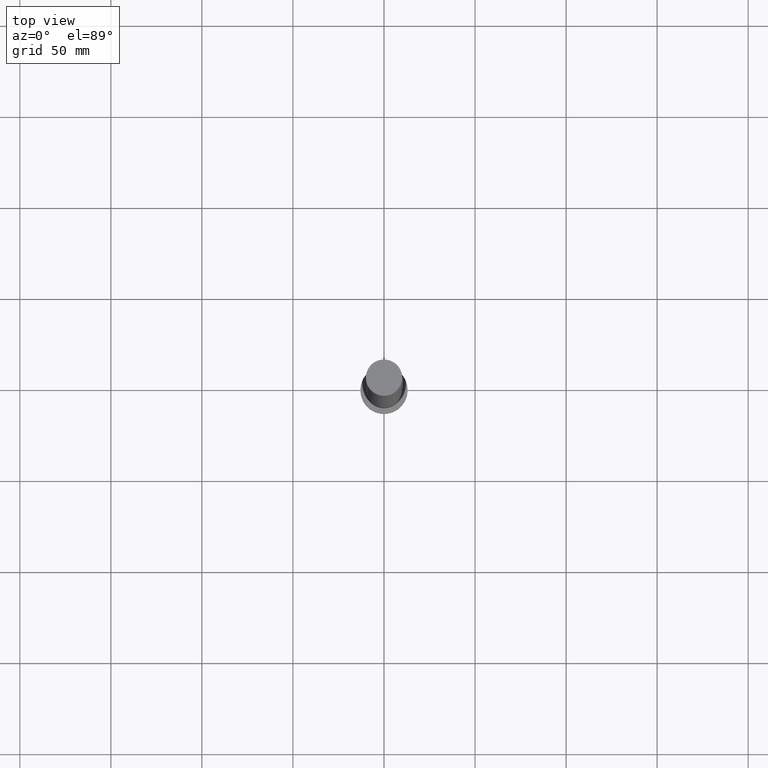
[diagram: clean part render]
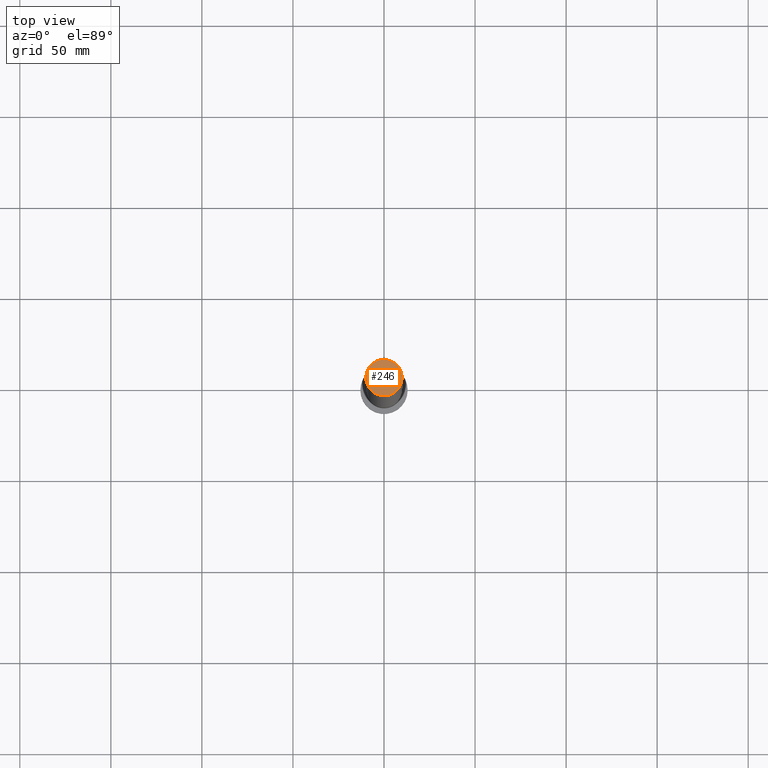
[diagram: same view with one face highlighted and labeled with its STEP entity id]
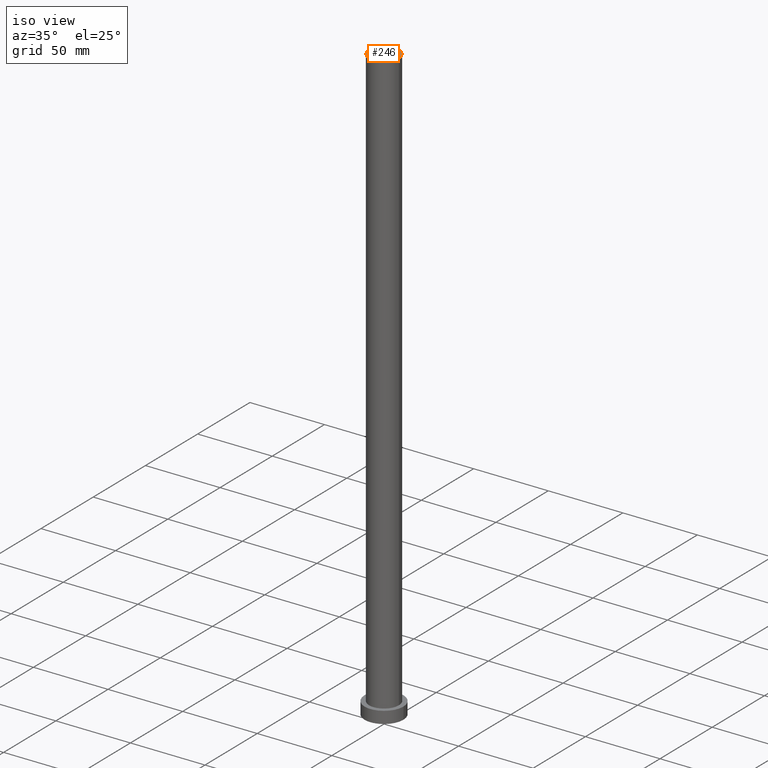
[diagram: same view with one face highlighted and labeled with its STEP entity id]
A machine part, top view. The second image highlights one B-rep face of the part: STEP entity #246.
A second angle (iso view) of the same face is appended — the face is thin or edge-on in the first view.
In plain terms, the highlighted planar face has unit normal (0, 0, 1).
Its self-contained STEP definition (entity closure, byte-faithful):
#8 = ORIENTED_EDGE ( 'NONE', *, *, #10, .T. ) ;
#9 = DIRECTION ( 'NONE',  ( 1.000000000000000000, 0.000000000000000000, 0.000000000000000000 ) ) ;
#10 = EDGE_CURVE ( 'NONE', #106, #205, #84, .T. ) ;
#20 = DIRECTION ( 'NONE',  ( 0.000000000000000000, 0.000000000000000000, 1.000000000000000000 ) ) ;
#21 = AXIS2_PLACEMENT_3D ( 'NONE', #119, #124, #102 ) ;
#22 = PLANE ( 'NONE',  #21 ) ;
#68 = CARTESIAN_POINT ( 'NONE',  ( 0.000000000000000000, 0.000000000000000000, 400.0000000000000000 ) ) ;
#74 = CARTESIAN_POINT ( 'NONE',  ( 10.00000000000000000, 1.224646799147353256E-15, 400.0000000000000000 ) ) ;
#84 = CIRCLE ( 'NONE', #222, 10.00000000000000000 ) ;
#102 = DIRECTION ( 'NONE',  ( 1.000000000000000000, 0.000000000000000000, -0.000000000000000000 ) ) ;
#106 = VERTEX_POINT ( 'NONE', #74 ) ;
#119 = CARTESIAN_POINT ( 'NONE',  ( 0.000000000000000000, 0.000000000000000000, 400.0000000000000000 ) ) ;
#124 = DIRECTION ( 'NONE',  ( 0.000000000000000000, 0.000000000000000000, 1.000000000000000000 ) ) ;
#128 = EDGE_LOOP ( 'NONE', ( #248, #8 ) ) ;
#137 = AXIS2_PLACEMENT_3D ( 'NONE', #144, #20, #180 ) ;
#144 = CARTESIAN_POINT ( 'NONE',  ( 0.000000000000000000, 0.000000000000000000, 400.0000000000000000 ) ) ;
#180 = DIRECTION ( 'NONE',  ( 1.000000000000000000, 0.000000000000000000, 0.000000000000000000 ) ) ;
#183 = CIRCLE ( 'NONE', #137, 10.00000000000000000 ) ;
#205 = VERTEX_POINT ( 'NONE', #232 ) ;
#220 = EDGE_CURVE ( 'NONE', #205, #106, #183, .T. ) ;
#222 = AXIS2_PLACEMENT_3D ( 'NONE', #68, #226, #9 ) ;
#226 = DIRECTION ( 'NONE',  ( 0.000000000000000000, 0.000000000000000000, 1.000000000000000000 ) ) ;
#232 = CARTESIAN_POINT ( 'NONE',  ( -10.00000000000000000, 0.000000000000000000, 400.0000000000000000 ) ) ;
#240 = FACE_OUTER_BOUND ( 'NONE', #128, .T. ) ;
#246 = ADVANCED_FACE ( 'NONE', ( #240 ), #22, .T. ) ;
#248 = ORIENTED_EDGE ( 'NONE', *, *, #220, .T. ) ;